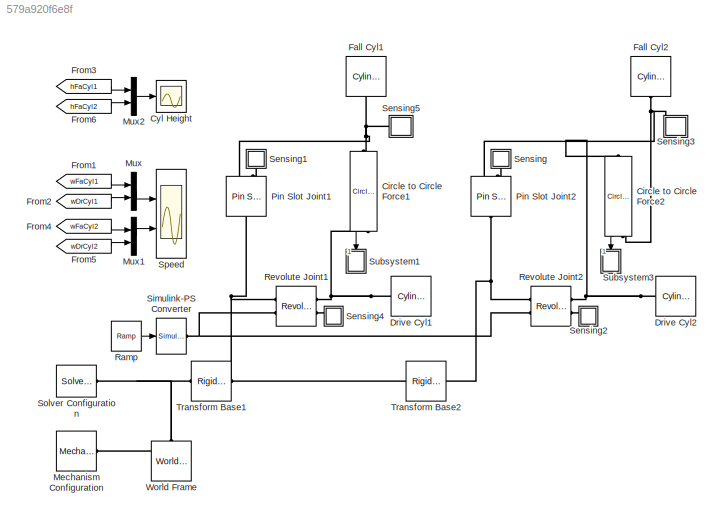
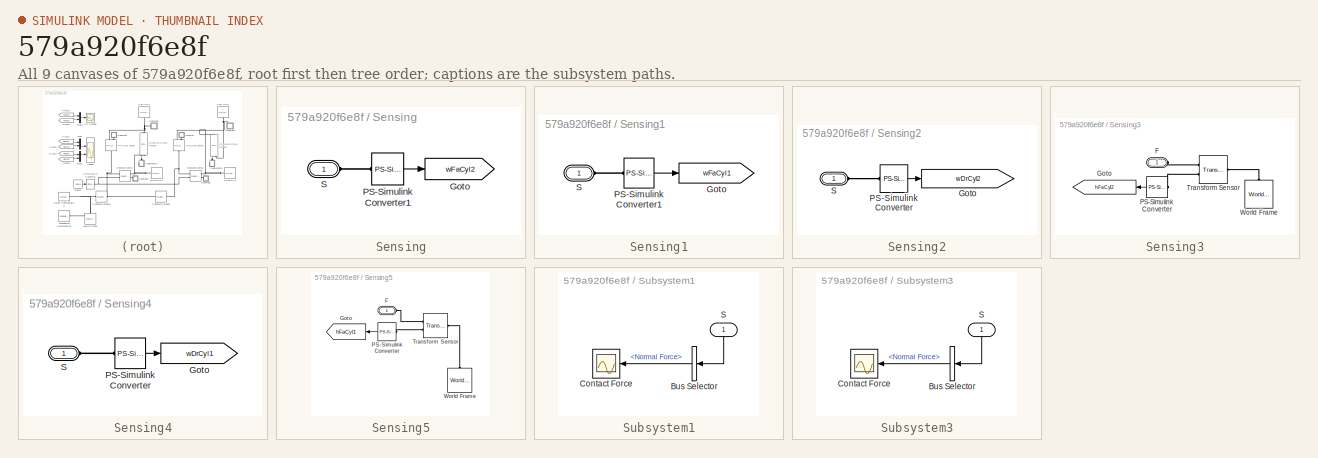
[diagram: thumbnail index - all 9 canvases of the model, root first then tree order]
MODEL slx_579a920f6e8f
KIND model
CONFIG PostLoadFcn = warning off Simulink:Engine:UsingDefaultMaxStepSize\n
CONFIG StartFcn = tic;
CONFIG StopFcn = Elapsed_Sim_Time = toc;\ndisp(['Elapsed Sim Time = ' num2str(Elapsed_Sim_Time)]);\n
BLOCK [Reference] Circle to Circle Force1  REF=Contact_Forces_Lib/2D/Circle to Circle Force
  Ports = [0, 1, 0, 0, 0, 1, 1]
  SourceBlock = Contact_Forces_Lib/2D/Circle to Circle Force
  SourceType = Circle to Circle Force
  active_angle = [-180 180]
  b_contact = 1e2
  cirB_rad = 0.1
  cirF_rad = 0.15
  custom_param_1 = 1
  custom_param_2 = 1
  force_law = Linear
  friction_law = Stick-Slip Continuous
  k_contact = 1e5
  mu_kinetic = 0.5
  mu_static = 0.7
  pen_exponent = 1
  pen_full_damp_F = 1e-4
  v_thr = 0.001
BLOCK [Reference] Circle to Circle Force2  REF=Contact_Forces_Lib/2D/Circle to Circle Force
  Ports = [0, 1, 0, 0, 0, 1, 1]
  SourceBlock = Contact_Forces_Lib/2D/Circle to Circle Force
  SourceType = Circle to Circle Force
  active_angle = [-180 180]
  b_contact = 1e2
  cirB_rad = 0.15
  cirF_rad = 0.1
  custom_param_1 = 1
  custom_param_2 = 1
  force_law = Linear
  friction_law = Stick-Slip Continuous
  k_contact = 1e5
  mu_kinetic = 0.5
  mu_static = 0.7
  pen_exponent = 1
  pen_full_damp_F = 1e-4
  v_thr = 0.001
BLOCK [Scope] Cyl Height
  DataFormat = StructureWithTime
  Floating = off
  LimitDataPoints = off
  NumInputPorts = 1
  Ports = [1]
  SampleTime = 0
  SaveName = ScopeData2
  ShowLegends = off
  TimeRange = 15
  YMax = 0.5
  YMin = 0.2
  ZoomMode = xonly
BLOCK [Reference] Drive Cyl1  REF=Parts_Lib/Cylinder
  Ports = [0, 0, 0, 0, 0, 1]
  SourceBlock = Parts_Lib/Cylinder
  SourceType = Solid Cylinder with Markings
  cyl_color = gray
  cyl_density = 1000
  cyl_length = 0.2
  cyl_radius = 0.1
  mark_angle = 60
  mark_color = black
  mark_radius = [0.75 0.5]
BLOCK [Reference] Drive Cyl2  REF=Parts_Lib/Cylinder
  Ports = [0, 0, 0, 0, 0, 1]
  SourceBlock = Parts_Lib/Cylinder
  SourceType = Solid Cylinder with Markings
  cyl_color = gray
  cyl_density = 1000
  cyl_length = 0.2
  cyl_radius = 0.1
  mark_angle = 60
  mark_color = black
  mark_radius = [0.75 0.5]
BLOCK [Reference] Fall Cyl1  REF=Parts_Lib/Cylinder
  Ports = [0, 0, 0, 0, 0, 1]
  SourceBlock = Parts_Lib/Cylinder
  SourceType = Solid Cylinder with Markings
  cyl_color = red
  cyl_density = 1000
  cyl_length = 0.2
  cyl_radius = 0.15
  mark_angle = 60
  mark_color = purple
  mark_radius = [0.75 0.5]
BLOCK [Reference] Fall Cyl2  REF=Parts_Lib/Cylinder
  Ports = [0, 0, 0, 0, 0, 1]
  SourceBlock = Parts_Lib/Cylinder
  SourceType = Solid Cylinder with Markings
  cyl_color = red
  cyl_density = 1000
  cyl_length = 0.2
  cyl_radius = 0.15
  mark_angle = 60
  mark_color = purple
  mark_radius = [0.75 0.5]
BLOCK [From] From1
  GotoTag = wFaCyl1
  TagVisibility = global
BLOCK [From] From2
  GotoTag = wDrCyl1
  TagVisibility = global
BLOCK [From] From3
  GotoTag = hFaCyl1
  TagVisibility = global
BLOCK [From] From4
  GotoTag = wFaCyl2
  TagVisibility = global
BLOCK [From] From5
  GotoTag = wDrCyl2
  TagVisibility = global
BLOCK [From] From6
  GotoTag = hFaCyl2
  TagVisibility = global
BLOCK [Reference] Mechanism Configuration  REF=sm_lib/Utilities/Mechanism
Configuration
  BlockFunction = simmechanics.library.utilities.mechanism_configuration
  ClassName = MechanismConfiguration
  GravityUnits = m/s^2
  GravityVector = [0 0 -9.81]
  LinearizationDelta = 0.001
  Ports = [0, 0, 0, 0, 0, 0, 1]
  SourceBlock = sm_lib/Utilities/Mechanism\nConfiguration
  SourceType = Mechanism\nConfiguration
  UniformGravity = Constant
BLOCK [Mux] Mux
  DisplayOption = bar
  Inputs = 2
  Ports = [2, 1]
BLOCK [Mux] Mux1
  DisplayOption = bar
  Inputs = 2
  Ports = [2, 1]
BLOCK [Mux] Mux2
  DisplayOption = bar
  Inputs = 2
  Ports = [2, 1]
BLOCK [Reference] Pin Slot Joint1  REF=sm_lib/Joints/Pin Slot Joint
  BlockFunction = simmechanics.library.joints.pinslot_joint
  ClassName = PinSlotJoint
  CompositeWrenchDir = FollowerOnBase
  CompositeWrenchFrame = BaseFrame
  Ports = [0, 0, 0, 0, 0, 1, 2]
  PxDampingCoefficient = 0
  PxDampingCoefficientUnits = N/(m/s)
  PxEquilibriumPosition = 0
  PxEquilibriumPositionUnits = m
  PxMotionActuationMode = ComputedMotion
  PxPositionTargetPriority = High
  PxPositionTargetSpecify = on
  PxPositionTargetValue = 0.5
  PxPositionTargetValueUnits = m
  PxSenseAcceleration = off
  PxSensePosition = off
  PxSenseTorqueForce = off
  PxSenseVelocity = off
  PxSpringStiffness = 0
  PxSpringStiffnessUnits = N/m
  PxTorqueActuationMode = NoTorque
  PxVelocityTargetPriority = High
  PxVelocityTargetSpecify = off
  PxVelocityTargetValue = 0
  PxVelocityTargetValueUnits = m/s
  RzDampingCoefficient = 0
  RzDampingCoefficientUnits = N*m/(deg/s)
  RzEquilibriumPosition = 0
  RzEquilibriumPositionUnits = deg
  RzMotionActuationMode = ComputedMotion
  RzPositionTargetPriority = High
  RzPositionTargetSpecify = off
  RzPositionTargetValue = 0
  RzPositionTargetValueUnits = deg
  RzSenseAcceleration = off
  RzSensePosition = off
  RzSenseTorqueForce = off
  RzSenseVelocity = on
  RzSpringStiffness = 0
  RzSpringStiffnessUnits = N*m/deg
  RzTorqueActuationMode = NoTorque
  RzVelocityTargetPriority = High
  RzVelocityTargetSpecify = off
  RzVelocityTargetValue = 0
  RzVelocityTargetValueUnits = deg/s
  SenseConstraintForce = off
  SenseConstraintForceX = off
  SenseConstraintForceY = off
  SenseConstraintForceZ = off
  SenseConstraintTorque = off
  SenseConstraintTorqueX = off
  SenseConstraintTorqueY = off
  SenseConstraintTorqueZ = off
  SenseTotalForce = off
  SenseTotalForceX = off
  SenseTotalForceY = off
  SenseTotalForceZ = off
  SenseTotalTorque = off
  SenseTotalTorqueX = off
  SenseTotalTorqueY = off
  SenseTotalTorqueZ = off
  SourceBlock = sm_lib/Joints/Pin Slot Joint
  SourceType = Pin Slot Joint
BLOCK [Reference] Pin Slot Joint2  REF=sm_lib/Joints/Pin Slot Joint
  BlockFunction = simmechanics.library.joints.pinslot_joint
  ClassName = PinSlotJoint
  CompositeWrenchDir = FollowerOnBase
  CompositeWrenchFrame = BaseFrame
  Ports = [0, 0, 0, 0, 0, 1, 2]
  PxDampingCoefficient = 0
  PxDampingCoefficientUnits = N/(m/s)
  PxEquilibriumPosition = 0
  PxEquilibriumPositionUnits = m
  PxMotionActuationMode = ComputedMotion
  PxPositionTargetPriority = High
  PxPositionTargetSpecify = on
  PxPositionTargetValue = 0.5
  PxPositionTargetValueUnits = m
  PxSenseAcceleration = off
  PxSensePosition = off
  PxSenseTorqueForce = off
  PxSenseVelocity = off
  PxSpringStiffness = 0
  PxSpringStiffnessUnits = N/m
  PxTorqueActuationMode = NoTorque
  PxVelocityTargetPriority = High
  PxVelocityTargetSpecify = off
  PxVelocityTargetValue = 0
  PxVelocityTargetValueUnits = m/s
  RzDampingCoefficient = 0
  RzDampingCoefficientUnits = N*m/(deg/s)
  RzEquilibriumPosition = 0
  RzEquilibriumPositionUnits = deg
  RzMotionActuationMode = ComputedMotion
  RzPositionTargetPriority = High
  RzPositionTargetSpecify = off
  RzPositionTargetValue = 0
  RzPositionTargetValueUnits = deg
  RzSenseAcceleration = off
  RzSensePosition = off
  RzSenseTorqueForce = off
  RzSenseVelocity = on
  RzSpringStiffness = 0
  RzSpringStiffnessUnits = N*m/deg
  RzTorqueActuationMode = NoTorque
  RzVelocityTargetPriority = High
  RzVelocityTargetSpecify = off
  RzVelocityTargetValue = 0
  RzVelocityTargetValueUnits = deg/s
  SenseConstraintForce = off
  SenseConstraintForceX = off
  SenseConstraintForceY = off
  SenseConstraintForceZ = off
  SenseConstraintTorque = off
  SenseConstraintTorqueX = off
  SenseConstraintTorqueY = off
  SenseConstraintTorqueZ = off
  SenseTotalForce = off
  SenseTotalForceX = off
  SenseTotalForceY = off
  SenseTotalForceZ = off
  SenseTotalTorque = off
  SenseTotalTorqueX = off
  SenseTotalTorqueY = off
  SenseTotalTorqueZ = off
  SourceBlock = sm_lib/Joints/Pin Slot Joint
  SourceType = Pin Slot Joint
BLOCK [Reference] Ramp  REF=simulink/Sources/Ramp
  Ports = [0, 1]
  SourceBlock = simulink/Sources/Ramp
  SourceType = Ramp
  VectorParams1D = on
  X0 = 0
  slope = 80*pi/180
  start = 1
BLOCK [Reference] Revolute Joint1  REF=sm_lib/Joints/Revolute Joint
  BlockFunction = simmechanics.library.joints.revolute_joint
  ClassName = RevoluteJoint
  CompositeWrenchDir = FollowerOnBase
  CompositeWrenchFrame = BaseFrame
  DampingCoefficient = 0
  DampingCoefficientUnits = N*m/(deg/s)
  EquilibriumPosition = 0
  EquilibriumPositionUnits = deg
  MotionActuationMode = InputMotion
  Ports = [0, 0, 0, 0, 0, 2, 2]
  PositionTargetPriority = High
  PositionTargetSpecify = on
  PositionTargetValue = 0
  PositionTargetValueUnits = deg
  SenseAcceleration = off
  SenseConstraintForce = off
  SenseConstraintForceX = off
  SenseConstraintForceY = off
  SenseConstraintForceZ = off
  SenseConstraintTorque = off
  SenseConstraintTorqueX = off
  SenseConstraintTorqueY = off
  SenseConstraintTorqueZ = off
  SensePosition = off
  SenseTorqueForce = off
  SenseTotalForce = off
  SenseTotalForceX = off
  SenseTotalForceY = off
  SenseTotalForceZ = off
  SenseTotalTorque = off
  SenseTotalTorqueX = off
  SenseTotalTorqueY = off
  SenseTotalTorqueZ = off
  SenseVelocity = on
  SourceBlock = sm_lib/Joints/Revolute Joint
  SourceType = Revolute Joint
  SpringStiffness = 0
  SpringStiffnessUnits = N*m/deg
  TorqueActuationMode = ComputedTorque
  VelocityTargetPriority = High
  VelocityTargetSpecify = off
  VelocityTargetValue = 0
  VelocityTargetValueUnits = deg/s
BLOCK [Reference] Revolute Joint2  REF=sm_lib/Joints/Revolute Joint
  BlockFunction = simmechanics.library.joints.revolute_joint
  ClassName = RevoluteJoint
  CompositeWrenchDir = FollowerOnBase
  CompositeWrenchFrame = BaseFrame
  DampingCoefficient = 0
  DampingCoefficientUnits = N*m/(deg/s)
  EquilibriumPosition = 0
  EquilibriumPositionUnits = deg
  MotionActuationMode = InputMotion
  Ports = [0, 0, 0, 0, 0, 2, 2]
  PositionTargetPriority = High
  PositionTargetSpecify = on
  PositionTargetValue = 0
  PositionTargetValueUnits = deg
  SenseAcceleration = off
  SenseConstraintForce = off
  SenseConstraintForceX = off
  SenseConstraintForceY = off
  SenseConstraintForceZ = off
  SenseConstraintTorque = off
  SenseConstraintTorqueX = off
  SenseConstraintTorqueY = off
  SenseConstraintTorqueZ = off
  SensePosition = off
  SenseTorqueForce = off
  SenseTotalForce = off
  SenseTotalForceX = off
  SenseTotalForceY = off
  SenseTotalForceZ = off
  SenseTotalTorque = off
  SenseTotalTorqueX = off
  SenseTotalTorqueY = off
  SenseTotalTorqueZ = off
  SenseVelocity = on
  SourceBlock = sm_lib/Joints/Revolute Joint
  SourceType = Revolute Joint
  SpringStiffness = 0
  SpringStiffnessUnits = N*m/deg
  TorqueActuationMode = ComputedTorque
  VelocityTargetPriority = High
  VelocityTargetSpecify = off
  VelocityTargetValue = 0
  VelocityTargetValueUnits = deg/s
BLOCK [SubSystem] Sensing
  Ports = [0, 0, 0, 0, 0, 1]
  RequestExecContextInheritance = off
BLOCK [Goto] Sensing/Goto
  GotoTag = wFaCyl2
  TagVisibility = global
BLOCK [Reference] Sensing/PS-Simulink Converter1  REF=nesl_utility/PS-Simulink
Converter
  AffineConversion = off
  Frequencies = []
  LeftPortType = input
  PhysicalDomain = network_engine_domain
  Ports = [0, 1, 0, 0, 0, 1]
  PseudoPeriodic = off
  RightPortType = output
  SourceBlock = nesl_utility/PS-Simulink\nConverter
  SourceType = PS-Simulink\nConverter
  SubClassName = ps_output
  Unit = deg/s
BLOCK [PMIOPort] Sensing/S
  Port = 1
  Side = Left
BLOCK [SubSystem] Sensing1
  Ports = [0, 0, 0, 0, 0, 1]
  RequestExecContextInheritance = off
BLOCK [Goto] Sensing1/Goto
  GotoTag = wFaCyl1
  TagVisibility = global
BLOCK [Reference] Sensing1/PS-Simulink Converter1  REF=nesl_utility/PS-Simulink
Converter
  AffineConversion = off
  Frequencies = []
  LeftPortType = input
  PhysicalDomain = network_engine_domain
  Ports = [0, 1, 0, 0, 0, 1]
  PseudoPeriodic = off
  RightPortType = output
  SourceBlock = nesl_utility/PS-Simulink\nConverter
  SourceType = PS-Simulink\nConverter
  SubClassName = ps_output
  Unit = deg/s
BLOCK [PMIOPort] Sensing1/S
  Port = 1
  Side = Left
BLOCK [SubSystem] Sensing2
  Ports = [0, 0, 0, 0, 0, 1]
  RequestExecContextInheritance = off
BLOCK [Goto] Sensing2/Goto
  GotoTag = wDrCyl2
  TagVisibility = global
BLOCK [Reference] Sensing2/PS-Simulink Converter  REF=nesl_utility/PS-Simulink
Converter
  AffineConversion = off
  Frequencies = []
  LeftPortType = input
  PhysicalDomain = network_engine_domain
  Ports = [0, 1, 0, 0, 0, 1]
  PseudoPeriodic = off
  RightPortType = output
  SourceBlock = nesl_utility/PS-Simulink\nConverter
  SourceType = PS-Simulink\nConverter
  SubClassName = ps_output
  Unit = deg/s
BLOCK [PMIOPort] Sensing2/S
  Port = 1
  Side = Left
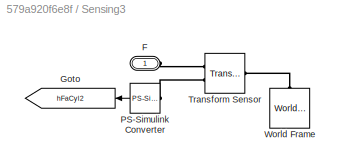
BLOCK [SubSystem] Sensing3
  Ports = [0, 0, 0, 0, 0, 1]
  RequestExecContextInheritance = off
BLOCK [PMIOPort] Sensing3/F
  Port = 1
  Side = Left
BLOCK [Goto] Sensing3/Goto
  GotoTag = hFaCyl2
  TagVisibility = global
BLOCK [Reference] Sensing3/PS-Simulink Converter  REF=nesl_utility/PS-Simulink
Converter
  AffineConversion = off
  Frequencies = []
  LeftPortType = input
  PhysicalDomain = network_engine_domain
  Ports = [0, 1, 0, 0, 0, 1]
  PseudoPeriodic = off
  RightPortType = output
  SourceBlock = nesl_utility/PS-Simulink\nConverter
  SourceType = PS-Simulink\nConverter
  SubClassName = ps_output
  Unit = 1
BLOCK [Reference] Sensing3/Transform Sensor  REF=sm_lib/Frames and
Transforms/Transform
Sensor
  BlockFunction = simmechanics.library.frames_transforms.transform_sensor
  ClassName = TransformSensor
  MeasurementFrame = World
  Ports = [0, 0, 0, 0, 0, 1, 2]
  SenseAlpha1 = off
  SenseAlpha2 = off
  SenseAlpha3 = off
  SenseAlphaX = off
  SenseAlphaY = off
  SenseAlphaZ = off
  SenseAngle = off
  SenseAngle1 = off
  SenseAngle2 = off
  SenseAngle3 = off
  SenseAxis = off
  SenseAzim = off
  SenseAzimDDot = off
  SenseAzimDot = off
  SenseDist = off
  SenseDistDDot = off
  SenseDistDot = off
  SenseInc = off
  SenseIncDDot = off
  SenseIncDot = off
  SenseOmega1 = off
  SenseOmega2 = off
  SenseOmega3 = off
  SenseOmegaX = off
  SenseOmegaY = off
  SenseOmegaZ = off
  SenseQ = off
  SenseQDDot = off
  SenseQDot = off
  SenseR = off
  SenseRDDot = off
  SenseRDot = off
  SenseRad = off
  SenseRadDDot = off
  SenseRadDot = off
  SenseX = off
  SenseXDDot = off
  SenseXDot = off
  SenseY = off
  SenseYDDot = off
  SenseYDot = off
  SenseZ = on
  SenseZDDot = off
  SenseZDot = off
  SourceBlock = sm_lib/Frames and\nTransforms/Transform\nSensor
  SourceType = Transform\nSensor
BLOCK [Reference] Sensing3/World Frame  REF=sm_lib/Frames and
Transforms/World Frame
  BlockFunction = simmechanics.library.frames_transforms.world_frame
  ClassName = WorldFrame
  Ports = [0, 0, 0, 0, 0, 0, 1]
  SourceBlock = sm_lib/Frames and\nTransforms/World Frame
  SourceType = World Frame
BLOCK [SubSystem] Sensing4
  Ports = [0, 0, 0, 0, 0, 1]
  RequestExecContextInheritance = off
BLOCK [Goto] Sensing4/Goto
  GotoTag = wDrCyl1
  TagVisibility = global
BLOCK [Reference] Sensing4/PS-Simulink Converter  REF=nesl_utility/PS-Simulink
Converter
  AffineConversion = off
  Frequencies = []
  LeftPortType = input
  PhysicalDomain = network_engine_domain
  Ports = [0, 1, 0, 0, 0, 1]
  PseudoPeriodic = off
  RightPortType = output
  SourceBlock = nesl_utility/PS-Simulink\nConverter
  SourceType = PS-Simulink\nConverter
  SubClassName = ps_output
  Unit = deg/s
BLOCK [PMIOPort] Sensing4/S
  Port = 1
  Side = Left
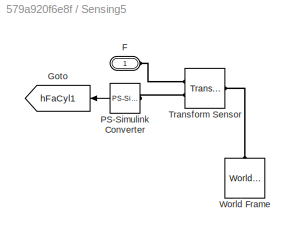
BLOCK [SubSystem] Sensing5
  Ports = [0, 0, 0, 0, 0, 1]
  RequestExecContextInheritance = off
BLOCK [PMIOPort] Sensing5/F
  Port = 1
  Side = Left
BLOCK [Goto] Sensing5/Goto
  GotoTag = hFaCyl1
  TagVisibility = global
BLOCK [Reference] Sensing5/PS-Simulink Converter  REF=nesl_utility/PS-Simulink
Converter
  AffineConversion = off
  Frequencies = []
  LeftPortType = input
  PhysicalDomain = network_engine_domain
  Ports = [0, 1, 0, 0, 0, 1]
  PseudoPeriodic = off
  RightPortType = output
  SourceBlock = nesl_utility/PS-Simulink\nConverter
  SourceType = PS-Simulink\nConverter
  SubClassName = ps_output
  Unit = 1
BLOCK [Reference] Sensing5/Transform Sensor  REF=sm_lib/Frames and
Transforms/Transform
Sensor
  BlockFunction = simmechanics.library.frames_transforms.transform_sensor
  ClassName = TransformSensor
  MeasurementFrame = World
  Ports = [0, 0, 0, 0, 0, 1, 2]
  SenseAlpha1 = off
  SenseAlpha2 = off
  SenseAlpha3 = off
  SenseAlphaX = off
  SenseAlphaY = off
  SenseAlphaZ = off
  SenseAngle = off
  SenseAngle1 = off
  SenseAngle2 = off
  SenseAngle3 = off
  SenseAxis = off
  SenseAzim = off
  SenseAzimDDot = off
  SenseAzimDot = off
  SenseDist = off
  SenseDistDDot = off
  SenseDistDot = off
  SenseInc = off
  SenseIncDDot = off
  SenseIncDot = off
  SenseOmega1 = off
  SenseOmega2 = off
  SenseOmega3 = off
  SenseOmegaX = off
  SenseOmegaY = off
  SenseOmegaZ = off
  SenseQ = off
  SenseQDDot = off
  SenseQDot = off
  SenseR = off
  SenseRDDot = off
  SenseRDot = off
  SenseRad = off
  SenseRadDDot = off
  SenseRadDot = off
  SenseX = off
  SenseXDDot = off
  SenseXDot = off
  SenseY = off
  SenseYDDot = off
  SenseYDot = off
  SenseZ = on
  SenseZDDot = off
  SenseZDot = off
  SourceBlock = sm_lib/Frames and\nTransforms/Transform\nSensor
  SourceType = Transform\nSensor
BLOCK [Reference] Sensing5/World Frame  REF=sm_lib/Frames and
Transforms/World Frame
  BlockFunction = simmechanics.library.frames_transforms.world_frame
  ClassName = WorldFrame
  Ports = [0, 0, 0, 0, 0, 0, 1]
  SourceBlock = sm_lib/Frames and\nTransforms/World Frame
  SourceType = World Frame
BLOCK [Reference] Simulink-PS Converter  REF=nesl_utility/Simulink-PS
Converter
  AffineConversion = off
  Frequencies = []
  InputFilterTimeConstant = 0.1
  InputFiltering = on
  LeftPortType = input
  NoiseDistribution = none
  NoiseParameters = []
  PhysicalDomain = network_engine_domain
  Ports = [1, 0, 0, 0, 0, 0, 1]
  PseudoPeriodic = off
  RightPortType = output
  SimscapeFilterOrder = 2
  SourceBlock = nesl_utility/Simulink-PS\nConverter
  SourceType = Simulink-PS\nConverter
  SubClassName = ps_input
  UdotUserProvided = 1
  Unit = 1
BLOCK [Reference] Solver Configuration  REF=nesl_utility/Solver
Configuration
  AbsTol = 1e-06
  Accelerate = off
  AutomaticFiltering = on
  DelaysMemoryBudget = 1024
  DoDC = off
  DoFixedCost = off
  EnableSwitchedLinearOptims = on
  FilteringTimeConstant = 0.001
  FrequencyDomain = off
  Harmonics = []
  LeftPortType = input
  LinearAlgebra = Sparse
  LocalSolverChoice = NE_BACKWARD_EULER_ADVANCER
  LocalSolverSampleTime = .001
  MaxModeIter = 2
  MaxNonlinIter = 3
  MinStep = 1e-09
  PhysicalDomain = network_engine_domain
  Ports = [0, 0, 0, 0, 0, 0, 1]
  Profile = off
  RelTol = 0.001
  ResidualTolerance = 1e-9
  RightPortType = generic
  SimulateNoise = off
  SourceBlock = nesl_utility/Solver\nConfiguration
  SourceType = Solver\nConfiguration
  SubClassName = solver
  ToWorkspace = off
  Tones = []
  UseCCode = off
  UseLocalSampling = off
  UseLocalSolver = off
BLOCK [Scope] Speed
  DataFormat = StructureWithTime
  Floating = off
  LimitDataPoints = off
  NumInputPorts = 2
  Ports = [2]
  SampleTime = 0
  ShowLegends = off
  TimeRange = 15
  YMax = 100~100
  YMin = -60~-60
  ZoomMode = yonly
BLOCK [SubSystem] Subsystem1
  Ports = [1]
  RequestExecContextInheritance = off
BLOCK [BusSelector] Subsystem1/Bus Selector
  OutputSignals = Normal Force
  Ports = [1, 1]
BLOCK [Scope] Subsystem1/Contact Force
  DataFormat = StructureWithTime
  Floating = off
  LimitDataPoints = off
  NumInputPorts = 1
  Ports = [1]
  SampleTime = 0
  SaveName = ScopeData3
  ShowLegends = off
  YMax = 2750
  YMin = 0
BLOCK [Inport] Subsystem1/S
  IconDisplay = Port number
BLOCK [SubSystem] Subsystem3
  Ports = [1]
  RequestExecContextInheritance = off
BLOCK [BusSelector] Subsystem3/Bus Selector
  OutputSignals = Normal Force
  Ports = [1, 1]
BLOCK [Scope] Subsystem3/Contact Force
  DataFormat = StructureWithTime
  Floating = off
  LimitDataPoints = off
  NumInputPorts = 1
  Ports = [1]
  SampleTime = 0
  SaveName = ScopeData3
  ShowLegends = off
  YMax = 2000
  YMin = 0
BLOCK [Inport] Subsystem3/S
  IconDisplay = Port number
BLOCK [Reference] Transform Base1  REF=sm_lib/Frames and
Transforms/Rigid
Transform
  BaseAlignAxisA = +Z
  BaseAlignAxisB = -Y
  BlockFunction = simmechanics.library.frames_transforms.rigid_transform
  ClassName = RigidTransform
  FollAlignAxisA = +X
  FollAlignAxisB = +Z
  Ports = [0, 0, 0, 0, 0, 1, 1]
  RotationAngle = 90
  RotationAngleUnits = deg
  RotationArbitraryAxis = [0 0 1]
  RotationMethod = AlignedAxes
  RotationStandardAxis = +X
  SourceBlock = sm_lib/Frames and\nTransforms/Rigid\nTransform
  SourceType = Rigid\nTransform
  TranslationCartesianOffset = [0 0 0]
  TranslationLengthUnit = m
  TranslationMethod = None
  TranslationROffset = 0
  TranslationROffsetUnits = m
  TranslationStandardAxis = +Z
  TranslationStandardOffset = 0
  TranslationThetaOffset = 0
  TranslationThetaOffsetUnits = deg
  TranslationZOffset = 0
  TranslationZOffsetUnits = m
BLOCK [Reference] Transform Base2  REF=sm_lib/Frames and
Transforms/Rigid
Transform
  BaseAlignAxisA = +Z
  BaseAlignAxisB = -Y
  BlockFunction = simmechanics.library.frames_transforms.rigid_transform
  ClassName = RigidTransform
  FollAlignAxisA = +X
  FollAlignAxisB = +Z
  Ports = [0, 0, 0, 0, 0, 1, 1]
  RotationAngle = 90
  RotationAngleUnits = deg
  RotationArbitraryAxis = [0 0 1]
  RotationMethod = None
  RotationStandardAxis = +X
  SourceBlock = sm_lib/Frames and\nTransforms/Rigid\nTransform
  SourceType = Rigid\nTransform
  TranslationCartesianOffset = [0 0 0]
  TranslationLengthUnit = m
  TranslationMethod = StandardAxis
  TranslationROffset = 0
  TranslationROffsetUnits = m
  TranslationStandardAxis = -Y
  TranslationStandardOffset = 0.4
  TranslationThetaOffset = 0
  TranslationThetaOffsetUnits = deg
  TranslationZOffset = 0
  TranslationZOffsetUnits = m
BLOCK [Reference] World Frame  REF=sm_lib/Frames and
Transforms/World Frame
  BlockFunction = simmechanics.library.frames_transforms.world_frame
  ClassName = WorldFrame
  Ports = [0, 0, 0, 0, 0, 0, 1]
  SourceBlock = sm_lib/Frames and\nTransforms/World Frame
  SourceType = World Frame
LINE Circle to Circle Force1:1 -> Subsystem1:1
LINE Circle to Circle Force2:1 -> Subsystem3:1
LINE From1:1 -> Mux:1
LINE From2:1 -> Mux:2
LINE From3:1 -> Mux2:1
LINE From4:1 -> Mux1:1
LINE From5:1 -> Mux1:2
LINE From6:1 -> Mux2:2
LINE Mux1:1 -> Speed:2
LINE Mux2:1 -> Cyl Height:1
LINE Mux:1 -> Speed:1
LINE Ramp:1 -> Simulink-PS Converter:1
LINE Sensing/PS-Simulink Converter1:1 -> Sensing/Goto:1
LINE Sensing1/PS-Simulink Converter1:1 -> Sensing1/Goto:1
LINE Sensing2/PS-Simulink Converter:1 -> Sensing2/Goto:1
LINE Sensing3/PS-Simulink Converter:1 -> Sensing3/Goto:1
LINE Sensing4/PS-Simulink Converter:1 -> Sensing4/Goto:1
LINE Sensing5/PS-Simulink Converter:1 -> Sensing5/Goto:1
LINE Subsystem1/Bus Selector:1 -> Subsystem1/Contact Force:1
LINE Subsystem1/S:1 -> Subsystem1/Bus Selector:1
LINE Subsystem3/Bus Selector:1 -> Subsystem3/Contact Force:1
LINE Subsystem3/S:1 -> Subsystem3/Bus Selector:1
PNET net1: Circle to Circle Force1:LConn1 -- Fall Cyl1:LConn1 -- Pin Slot Joint1:RConn1 -- Sensing5:LConn1
PNET net2: Circle to Circle Force1:RConn1 -- Drive Cyl1:LConn1 -- Revolute Joint1:RConn1
PNET net3: Circle to Circle Force2:LConn1 -- Drive Cyl2:LConn1 -- Revolute Joint2:RConn1
PNET net4: Circle to Circle Force2:RConn1 -- Fall Cyl2:LConn1 -- Pin Slot Joint2:RConn1 -- Sensing3:LConn1
PNET net5: Mechanism Configuration:RConn1 -- Solver Configuration:RConn1 -- Transform Base1:LConn1 -- World Frame:RConn1
PNET net6: Pin Slot Joint1:LConn1 -- Revolute Joint1:LConn1 -- Transform Base1:RConn1 -- Transform Base2:LConn1
PLINE Pin Slot Joint1:RConn2 -- Sensing1:LConn1
PNET net7: Pin Slot Joint2:LConn1 -- Revolute Joint2:LConn1 -- Transform Base2:RConn1
PLINE Pin Slot Joint2:RConn2 -- Sensing:LConn1
PNET net8: Revolute Joint1:LConn2 -- Revolute Joint2:LConn2 -- Simulink-PS Converter:RConn1
PLINE Revolute Joint1:RConn2 -- Sensing4:LConn1
PLINE Revolute Joint2:RConn2 -- Sensing2:LConn1
PLINE Sensing/PS-Simulink Converter1:LConn1 -- Sensing/S:RConn1
PLINE Sensing1/PS-Simulink Converter1:LConn1 -- Sensing1/S:RConn1
PLINE Sensing2/PS-Simulink Converter:LConn1 -- Sensing2/S:RConn1
PLINE Sensing3/F:RConn1 -- Sensing3/Transform Sensor:RConn1
PLINE Sensing3/PS-Simulink Converter:LConn1 -- Sensing3/Transform Sensor:RConn2
PLINE Sensing3/Transform Sensor:LConn1 -- Sensing3/World Frame:RConn1
PLINE Sensing4/PS-Simulink Converter:LConn1 -- Sensing4/S:RConn1
PLINE Sensing5/F:RConn1 -- Sensing5/Transform Sensor:RConn1
PLINE Sensing5/PS-Simulink Converter:LConn1 -- Sensing5/Transform Sensor:RConn2
PLINE Sensing5/Transform Sensor:LConn1 -- Sensing5/World Frame:RConn1
note: PNET lines group multi-terminal physical nets as a canonical sorted terminal list (undirected conserving connections); 2-terminal nets keep the pairwise PLINE form
